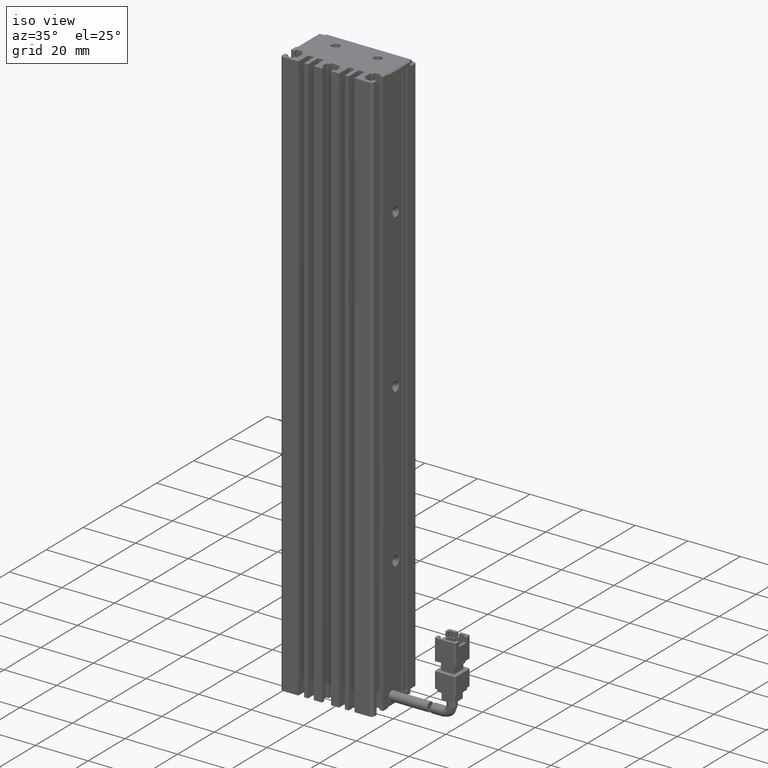
[diagram: clean part render]
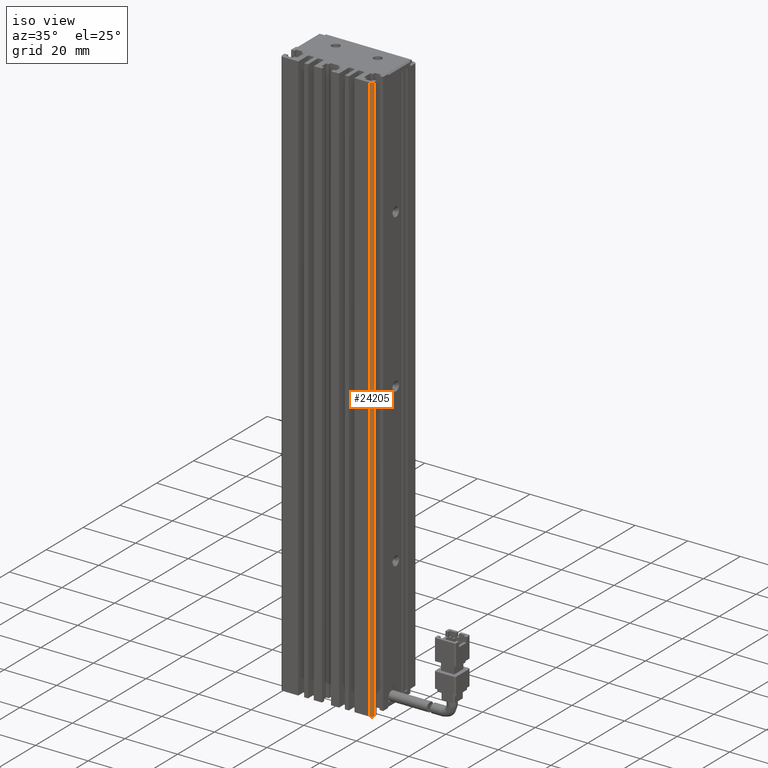
[diagram: same view with one face highlighted and labeled with its STEP entity id]
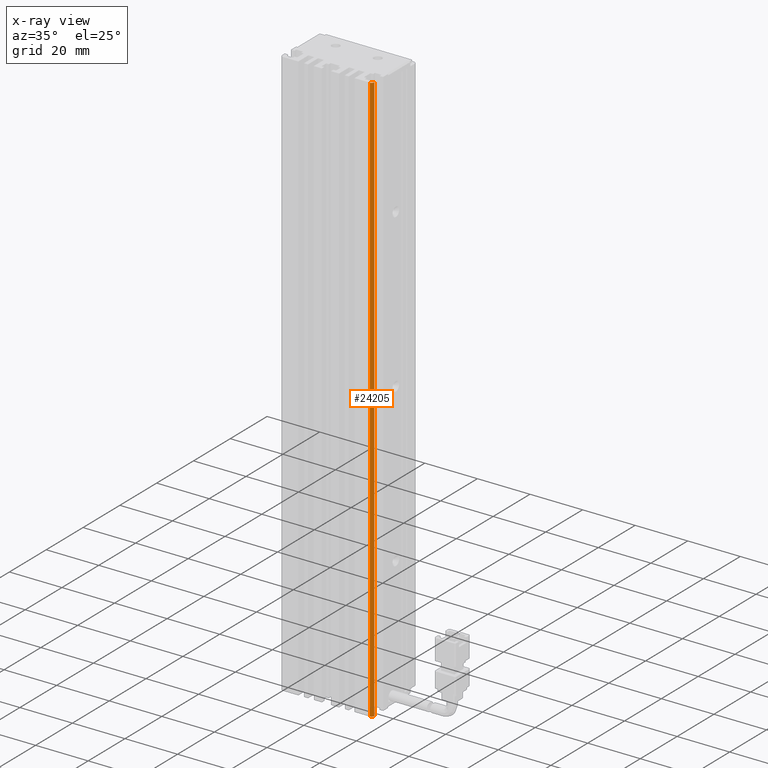
[diagram: x-ray of the same camera — body ghosted, the highlighted face saturated]
A machine part, iso view. The second image highlights one B-rep face of the part: STEP entity #24205.
The next image is the same camera in x-ray: the body ghosted, the highlighted face saturated — about 0% of this face is hidden behind the body in this view.
In plain terms, the highlighted cylindrical surface (edge-blend (fillet) strip) has radius 1 mm, axis along (-0, -0, -1).
Its self-contained STEP definition (entity closure, byte-faithful):
#5156 = CARTESIAN_POINT ( 'NONE',  ( 58.42537974683542500, 11.99073232304837700, -6.000000000000005300 ) ) ;
#7174 = AXIS2_PLACEMENT_3D ( 'NONE', #40179, #48172, #12040 ) ;
#11498 = AXIS2_PLACEMENT_3D ( 'NONE', #42185, #27733, #89908 ) ;
#12040 = DIRECTION ( 'NONE',  ( -1.000000000000000000, 0.0000000000000000000, 0.0000000000000000000 ) ) ;
#15973 = VERTEX_POINT ( 'NONE', #23695 ) ;
#17177 = CIRCLE ( 'NONE', #66422, 1.000000000000000900 ) ;
#17622 = CYLINDRICAL_SURFACE ( 'NONE', #11498, 1.000000000000000900 ) ;
#17859 = EDGE_CURVE ( 'NONE', #15973, #86108, #69029, .T. ) ;
#23695 = CARTESIAN_POINT ( 'NONE',  ( 58.42537974683542500, 11.99073232304837500, -6.000000000000005300 ) ) ;
#24205 = ADVANCED_FACE ( 'NONE', ( #45106 ), #17622, .T. ) ;
#25281 = LINE ( 'NONE', #80282, #70197 ) ;
#27733 = DIRECTION ( 'NONE',  ( -0.0000000000000000000, -0.0000000000000000000, -1.000000000000000000 ) ) ;
#29529 = EDGE_CURVE ( 'NONE', #72565, #15973, #48409, .T. ) ;
#32132 = EDGE_LOOP ( 'NONE', ( #57181, #39776, #57777, #46853 ) ) ;
#35838 = CARTESIAN_POINT ( 'NONE',  ( 57.42537974683542500, 10.99073232304837200, -224.0000000000000000 ) ) ;
#39692 = CARTESIAN_POINT ( 'NONE',  ( 57.42537974683542500, 10.99073232304837200, -6.000000000000005300 ) ) ;
#39776 = ORIENTED_EDGE ( 'NONE', *, *, #49371, .T. ) ;
#40179 = CARTESIAN_POINT ( 'NONE',  ( 57.42537974683542500, 11.99073232304837700, -6.000000000000005300 ) ) ;
#42185 = CARTESIAN_POINT ( 'NONE',  ( 57.42537974683542500, 11.99073232304837700, -6.000000000000005300 ) ) ;
#45106 = FACE_OUTER_BOUND ( 'NONE', #32132, .T. ) ;
#45679 = DIRECTION ( 'NONE',  ( 0.0000000000000000000, 0.0000000000000000000, 1.000000000000000000 ) ) ;
#46853 = ORIENTED_EDGE ( 'NONE', *, *, #29529, .T. ) ;
#48172 = DIRECTION ( 'NONE',  ( -0.0000000000000000000, -0.0000000000000000000, -1.000000000000000000 ) ) ;
#48409 = LINE ( 'NONE', #5156, #88823 ) ;
#49371 = EDGE_CURVE ( 'NONE', #86108, #73909, #25281, .T. ) ;
#57181 = ORIENTED_EDGE ( 'NONE', *, *, #17859, .T. ) ;
#57777 = ORIENTED_EDGE ( 'NONE', *, *, #65462, .T. ) ;
#65462 = EDGE_CURVE ( 'NONE', #73909, #72565, #17177, .T. ) ;
#66422 = AXIS2_PLACEMENT_3D ( 'NONE', #67012, #45679, #66436 ) ;
#66436 = DIRECTION ( 'NONE',  ( -1.000000000000000000, 0.0000000000000000000, 0.0000000000000000000 ) ) ;
#67012 = CARTESIAN_POINT ( 'NONE',  ( 57.42537974683542500, 11.99073232304837700, -224.0000000000000000 ) ) ;
#69029 = CIRCLE ( 'NONE', #7174, 1.000000000000000900 ) ;
#70197 = VECTOR ( 'NONE', #72335, 1000.000000000000000 ) ;
#72335 = DIRECTION ( 'NONE',  ( -0.0000000000000000000, -0.0000000000000000000, -1.000000000000000000 ) ) ;
#72565 = VERTEX_POINT ( 'NONE', #81424 ) ;
#73909 = VERTEX_POINT ( 'NONE', #35838 ) ;
#80282 = CARTESIAN_POINT ( 'NONE',  ( 57.42537974683542500, 10.99073232304837500, -6.000000000000005300 ) ) ;
#81424 = CARTESIAN_POINT ( 'NONE',  ( 58.42537974683542500, 11.99073232304837500, -224.0000000000000000 ) ) ;
#86108 = VERTEX_POINT ( 'NONE', #39692 ) ;
#88823 = VECTOR ( 'NONE', #89239, 1000.000000000000000 ) ;
#89239 = DIRECTION ( 'NONE',  ( 0.0000000000000000000, 0.0000000000000000000, 1.000000000000000000 ) ) ;
#89908 = DIRECTION ( 'NONE',  ( -1.000000000000000000, 0.0000000000000000000, 0.0000000000000000000 ) ) ;